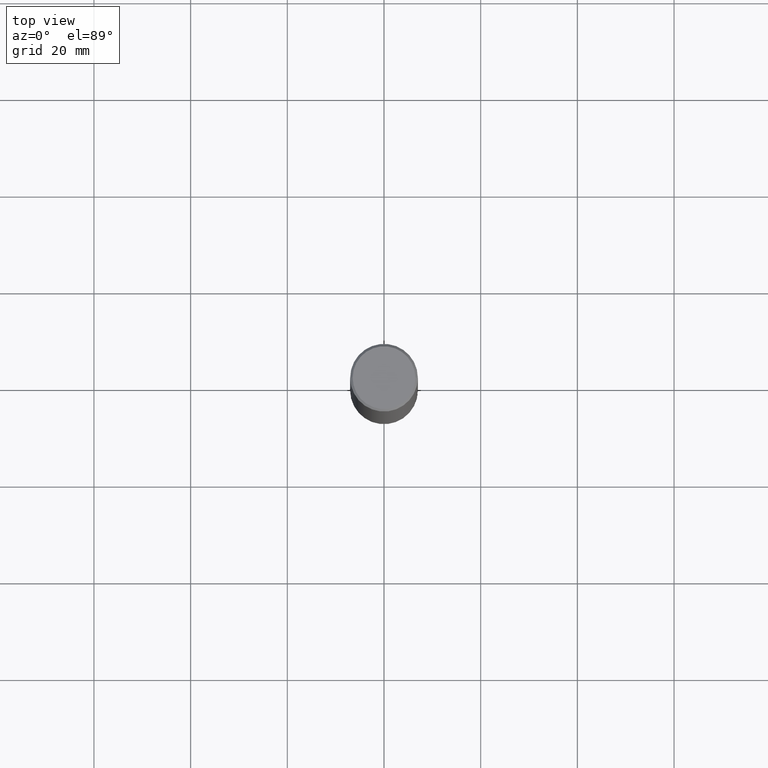
[diagram: clean part render]
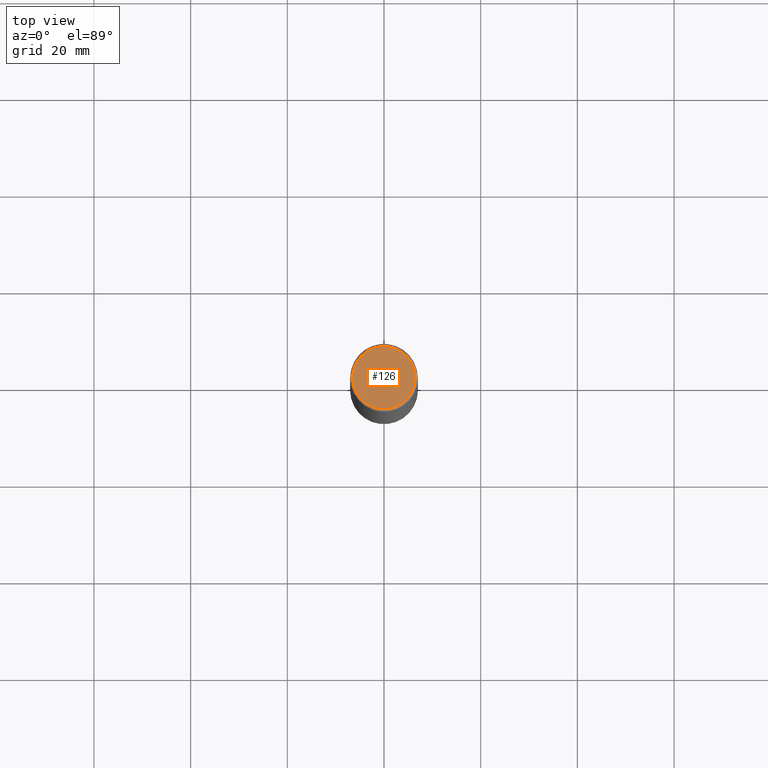
[diagram: same view with one face highlighted and labeled with its STEP entity id]
A machine part, top view. The second image highlights one B-rep face of the part: STEP entity #126.
In plain terms, the highlighted planar face has unit normal (0, -0, -1).
Its self-contained STEP definition (entity closure, byte-faithful):
#20 = VERTEX_POINT ( 'NONE', #95 ) ;
#23 = DIRECTION ( 'NONE',  ( 1.000000000000000000, -6.982962677686267499E-15, 4.876201967404968863E-29 ) ) ;
#25 = ORIENTED_EDGE ( 'NONE', *, *, #348, .T. ) ;
#33 = DIRECTION ( 'NONE',  ( -2.445468806185136597E-29, 3.491481338843145583E-15, 1.000000000000000000 ) ) ;
#37 = DIRECTION ( 'NONE',  ( -1.000000000000000000, 6.982962677686265922E-15, -4.876176775795935793E-29 ) ) ;
#68 = CARTESIAN_POINT ( 'NONE',  ( -1.043851414335219820E-46, 1.490343170380447200E-32, 4.268512490100411279E-18 ) ) ;
#92 = EDGE_CURVE ( 'NONE', #20, #197, #257, .T. ) ;
#94 = CARTESIAN_POINT ( 'NONE',  ( 1.784845260416607174E-15, 0.2555999999999996608, -8.902883739632567265E-16 ) ) ;
#95 = CARTESIAN_POINT ( 'NONE',  ( -0.2555999999999996608, 1.819760073805038823E-15, 4.268512490087807223E-18 ) ) ;
#97 = AXIS2_PLACEMENT_3D ( 'NONE', #286, #33, #317 ) ;
#126 = ADVANCED_FACE ( 'NONE', ( #262 ), #357, .F. ) ;
#145 = DIRECTION ( 'NONE',  ( -2.445468806185136597E-29, 3.491481338843145583E-15, 1.000000000000000000 ) ) ;
#152 = DIRECTION ( 'NONE',  ( 2.438088387897960049E-29, -3.491481338843145188E-15, -1.000000000000000000 ) ) ;
#188 = AXIS2_PLACEMENT_3D ( 'NONE', #94, #152, #37 ) ;
#197 = VERTEX_POINT ( 'NONE', #222 ) ;
#213 = CIRCLE ( 'NONE', #321, 0.2555999999999996608 ) ;
#222 = CARTESIAN_POINT ( 'NONE',  ( 0.2555999999999996608, -1.857063081596548059E-15, 4.268512490113146298E-18 ) ) ;
#257 = CIRCLE ( 'NONE', #97, 0.2555999999999996608 ) ;
#262 = FACE_OUTER_BOUND ( 'NONE', #341, .T. ) ;
#286 = CARTESIAN_POINT ( 'NONE',  ( -1.043851414335219820E-46, 1.490343170380447200E-32, 4.268512490100411279E-18 ) ) ;
#317 = DIRECTION ( 'NONE',  ( 1.000000000000000000, -6.982962677686267499E-15, 4.876201967404968863E-29 ) ) ;
#321 = AXIS2_PLACEMENT_3D ( 'NONE', #68, #145, #23 ) ;
#341 = EDGE_LOOP ( 'NONE', ( #345, #25 ) ) ;
#345 = ORIENTED_EDGE ( 'NONE', *, *, #92, .T. ) ;
#348 = EDGE_CURVE ( 'NONE', #197, #20, #213, .T. ) ;
#357 = PLANE ( 'NONE',  #188 ) ;